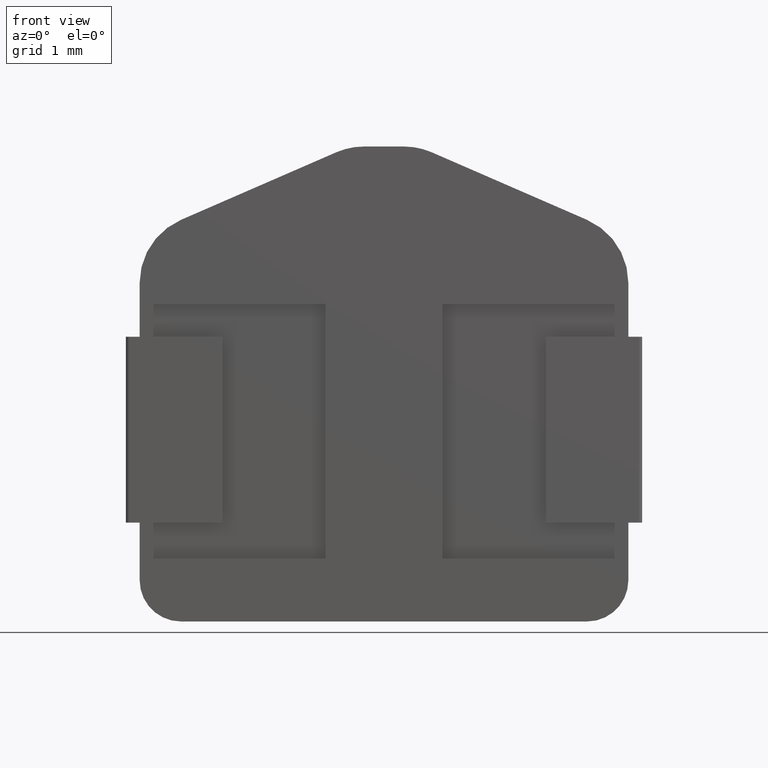
[diagram: clean part render]
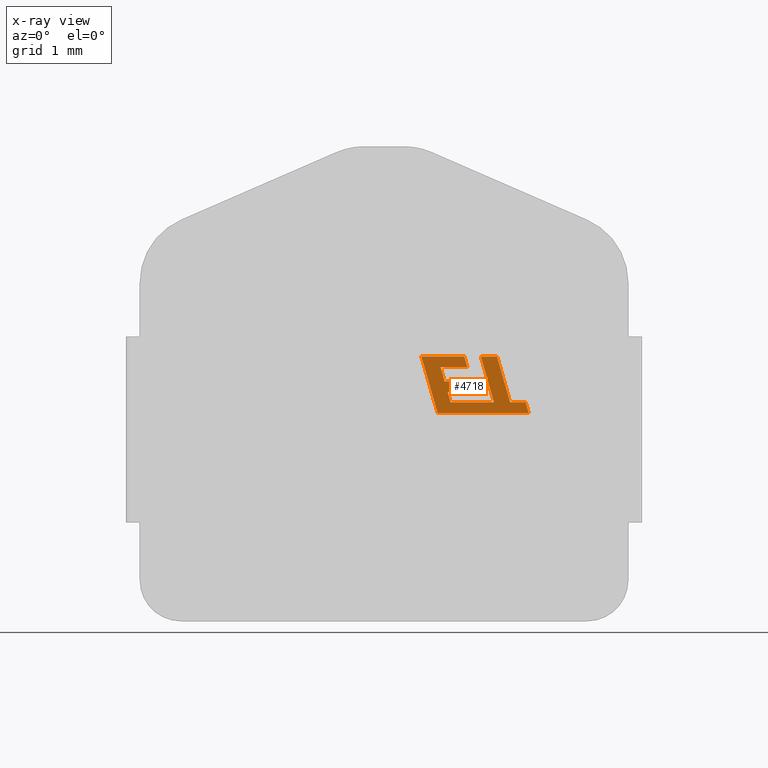
[diagram: x-ray — body ghosted, one internal face saturated and labeled with its STEP entity id]
A machine part, front view, then the same camera in x-ray: the body is ghosted and one INTERNAL B-rep face — a face not visible from any outside direction — is saturated and labeled: STEP entity #4718.
In plain terms, the highlighted planar face has unit normal (0, 1, -0).
Its self-contained STEP definition (entity closure, byte-faithful):
#24 = ORIENTED_EDGE ( 'NONE', *, *, #288, .F. ) ;
#55 = CARTESIAN_POINT ( 'NONE',  ( 3.815651111959286600, 3.000000000000000000, -2.728963836854994400 ) ) ;
#78 = DIRECTION ( 'NONE',  ( 0.2729786930695121100, -9.271319956921572800E-017, -0.9620200793798749900 ) ) ;
#177 = VERTEX_POINT ( 'NONE', #2889 ) ;
#194 = EDGE_CURVE ( 'NONE', #4383, #2984, #3075, .T. ) ;
#286 = ORIENTED_EDGE ( 'NONE', *, *, #194, .F. ) ;
#288 = EDGE_CURVE ( 'NONE', #177, #494, #4336, .T. ) ;
#295 = EDGE_CURVE ( 'NONE', #3774, #4580, #4686, .T. ) ;
#311 = VECTOR ( 'NONE', #2411, 1000.000000000000200 ) ;
#319 = CARTESIAN_POINT ( 'NONE',  ( 3.619887820975604700, 3.000000000000000000, -2.885910522433726000 ) ) ;
#344 = ORIENTED_EDGE ( 'NONE', *, *, #2774, .F. ) ;
#382 = ORIENTED_EDGE ( 'NONE', *, *, #4048, .F. ) ;
#406 = CARTESIAN_POINT ( 'NONE',  ( 3.756255034792675800, 3.000000000000000000, -3.395667498842474000 ) ) ;
#410 = VECTOR ( 'NONE', #2431, 1000.000000000000100 ) ;
#429 = CARTESIAN_POINT ( 'NONE',  ( 3.756255034792675800, 3.000000000000000000, -3.395667498842474000 ) ) ;
#430 = DIRECTION ( 'NONE',  ( 0.9999960426590095400, 2.711276046396867900E-019, 0.002813301676023186900 ) ) ;
#432 = ORIENTED_EDGE ( 'NONE', *, *, #3331, .F. ) ;
#494 = VERTEX_POINT ( 'NONE', #3499 ) ;
#526 = ORIENTED_EDGE ( 'NONE', *, *, #295, .F. ) ;
#561 = CARTESIAN_POINT ( 'NONE',  ( 3.687604966545133600, 3.000000000000000400, -3.243320222380188700 ) ) ;
#572 = ORIENTED_EDGE ( 'NONE', *, *, #4684, .F. ) ;
#576 = DIRECTION ( 'NONE',  ( -1.000000000000000000, 0.0000000000000000000, -0.0000000000000000000 ) ) ;
#593 = ORIENTED_EDGE ( 'NONE', *, *, #1124, .F. ) ;
#604 = CARTESIAN_POINT ( 'NONE',  ( 3.575353302383757400, 3.000000000000000000, -2.728963836854994400 ) ) ;
#639 = CARTESIAN_POINT ( 'NONE',  ( 4.467716054780367200, 3.000000000000000000, -3.394483418020517000 ) ) ;
#644 = LINE ( 'NONE', #3483, #3506 ) ;
#675 = DIRECTION ( 'NONE',  ( 0.2746918797667231000, -9.266619094790076700E-017, -0.9615323037684299100 ) ) ;
#691 = DIRECTION ( 'NONE',  ( -1.000000000000000000, 0.0000000000000000000, -0.0000000000000000000 ) ) ;
#697 = LINE ( 'NONE', #561, #2039 ) ;
#770 = LINE ( 'NONE', #4121, #4617 ) ;
#772 = LINE ( 'NONE', #1585, #3654 ) ;
#790 = CARTESIAN_POINT ( 'NONE',  ( 3.801727492437894100, 3.000000000000000000, -3.553752751347214500 ) ) ;
#821 = CARTESIAN_POINT ( 'NONE',  ( 3.189439304286957100, 3.000000000000000000, -3.553752751347214500 ) ) ;
#825 = VECTOR ( 'NONE', #3543, 1000.000000000000000 ) ;
#872 = CARTESIAN_POINT ( 'NONE',  ( 3.575353302383757400, 3.000000000000000000, -2.728963836854994400 ) ) ;
#966 = ORIENTED_EDGE ( 'NONE', *, *, #3266, .F. ) ;
#984 = VERTEX_POINT ( 'NONE', #3388 ) ;
#988 = EDGE_CURVE ( 'NONE', #3780, #1557, #770, .T. ) ;
#1024 = DIRECTION ( 'NONE',  ( 1.000000000000000000, 0.0000000000000000000, 0.0000000000000000000 ) ) ;
#1121 = VECTOR ( 'NONE', #691, 1000.000000000000000 ) ;
#1124 = EDGE_CURVE ( 'NONE', #2614, #1665, #1580, .T. ) ;
#1179 = CARTESIAN_POINT ( 'NONE',  ( 3.378290941649760600, 3.000000000000000000, -3.396730830067153500 ) ) ;
#1193 = ORIENTED_EDGE ( 'NONE', *, *, #4196, .F. ) ;
#1388 = DIRECTION ( 'NONE',  ( 0.0000000000000000000, 9.637345576921772200E-017, 1.000000000000000000 ) ) ;
#1401 = LINE ( 'NONE', #1936, #410 ) ;
#1415 = LINE ( 'NONE', #2471, #311 ) ;
#1430 = CARTESIAN_POINT ( 'NONE',  ( 3.231636499808257000, 3.000000000000000000, -2.885910522433726000 ) ) ;
#1458 = FACE_OUTER_BOUND ( 'NONE', #1609, .T. ) ;
#1526 = CARTESIAN_POINT ( 'NONE',  ( 2.952201079175948500, 3.000000000000000000, -2.728963836854994400 ) ) ;
#1555 = DIRECTION ( 'NONE',  ( -1.000000000000000000, 0.0000000000000000000, -0.0000000000000000000 ) ) ;
#1557 = VERTEX_POINT ( 'NONE', #1526 ) ;
#1580 = LINE ( 'NONE', #429, #2120 ) ;
#1582 = LINE ( 'NONE', #790, #3879 ) ;
#1585 = CARTESIAN_POINT ( 'NONE',  ( 4.007000575218949500, 3.000000000000000000, -3.394501345494890500 ) ) ;
#1609 = EDGE_LOOP ( 'NONE', ( #2025, #382, #572, #526, #1846, #1193, #24, #3016, #1944, #3087, #966, #3855, #344, #4264, #286, #432, #593 ) ) ;
#1665 = VERTEX_POINT ( 'NONE', #3111 ) ;
#1695 = LINE ( 'NONE', #1430, #4439 ) ;
#1706 = CARTESIAN_POINT ( 'NONE',  ( 4.467716054780367200, 3.000000000000000000, -3.394483418020517000 ) ) ;
#1731 = CARTESIAN_POINT ( 'NONE',  ( 3.290149811430506300, 3.000000000000000000, -3.090872631651098200 ) ) ;
#1846 = ORIENTED_EDGE ( 'NONE', *, *, #2509, .F. ) ;
#1879 = CARTESIAN_POINT ( 'NONE',  ( 3.644053527764386400, 3.000000000000000000, -3.090872631651098200 ) ) ;
#1936 = CARTESIAN_POINT ( 'NONE',  ( 4.241896461545553400, 3.000000000000000000, -3.394501345492823700 ) ) ;
#1944 = ORIENTED_EDGE ( 'NONE', *, *, #4135, .F. ) ;
#2025 = ORIENTED_EDGE ( 'NONE', *, *, #2281, .F. ) ;
#2039 = VECTOR ( 'NONE', #576, 1000.000000000000000 ) ;
#2072 = VERTEX_POINT ( 'NONE', #639 ) ;
#2120 = VECTOR ( 'NONE', #4562, 1000.000000000000200 ) ;
#2131 = VECTOR ( 'NONE', #1024, 1000.000000000000000 ) ;
#2254 = VERTEX_POINT ( 'NONE', #2325 ) ;
#2281 = EDGE_CURVE ( 'NONE', #2672, #2614, #644, .T. ) ;
#2325 = CARTESIAN_POINT ( 'NONE',  ( 4.241896461545553400, 3.000000000000000000, -3.394501345492823700 ) ) ;
#2343 = CARTESIAN_POINT ( 'NONE',  ( 4.513487307203996900, 3.000000000000000000, -3.553752751347214500 ) ) ;
#2411 = DIRECTION ( 'NONE',  ( 0.2793947940814895400, -9.253550928069344500E-017, -0.9601763114346041400 ) ) ;
#2426 = VERTEX_POINT ( 'NONE', #604 ) ;
#2431 = DIRECTION ( 'NONE',  ( 0.9999999968487352000, 7.650941307961965300E-021, 7.938847109813534800E-005 ) ) ;
#2471 = CARTESIAN_POINT ( 'NONE',  ( 3.333651093078017400, 3.000000000000000400, -3.243320222380188700 ) ) ;
#2509 = EDGE_CURVE ( 'NONE', #3577, #3774, #3231, .T. ) ;
#2525 = LINE ( 'NONE', #2925, #3062 ) ;
#2559 = DIRECTION ( 'NONE',  ( 0.0000000000000000000, 1.000000000000000000, -9.637345576921772200E-017 ) ) ;
#2574 = LINE ( 'NONE', #4777, #4779 ) ;
#2575 = VECTOR ( 'NONE', #2883, 1000.000000000000000 ) ;
#2614 = VERTEX_POINT ( 'NONE', #406 ) ;
#2663 = EDGE_CURVE ( 'NONE', #2426, #177, #2812, .T. ) ;
#2672 = VERTEX_POINT ( 'NONE', #1179 ) ;
#2774 = EDGE_CURVE ( 'NONE', #2254, #2072, #1401, .T. ) ;
#2812 = LINE ( 'NONE', #872, #3569 ) ;
#2883 = DIRECTION ( 'NONE',  ( 1.000000000000000000, 0.0000000000000000000, 0.0000000000000000000 ) ) ;
#2886 = CARTESIAN_POINT ( 'NONE',  ( 3.290149811430506300, 3.000000000000000000, -3.090872631651098200 ) ) ;
#2889 = CARTESIAN_POINT ( 'NONE',  ( 3.619887820975604700, 3.000000000000000000, -2.885910522433726000 ) ) ;
#2925 = CARTESIAN_POINT ( 'NONE',  ( 2.952201079175948500, 3.000000000000000000, -2.728963836854994400 ) ) ;
#2969 = DIRECTION ( 'NONE',  ( -0.2764273280489760200, 9.261824707170264900E-017, 0.9610348236706637300 ) ) ;
#2984 = VERTEX_POINT ( 'NONE', #4027 ) ;
#3016 = ORIENTED_EDGE ( 'NONE', *, *, #2663, .F. ) ;
#3062 = VECTOR ( 'NONE', #3649, 1000.000000000000000 ) ;
#3075 = LINE ( 'NONE', #3284, #2131 ) ;
#3087 = ORIENTED_EDGE ( 'NONE', *, *, #988, .F. ) ;
#3111 = CARTESIAN_POINT ( 'NONE',  ( 4.007000575218949500, 3.000000000000000000, -3.394501345494890500 ) ) ;
#3231 = LINE ( 'NONE', #1731, #2575 ) ;
#3242 = DIRECTION ( 'NONE',  ( 0.2745159998572679900, -9.267103161489322900E-017, -0.9615825319869140100 ) ) ;
#3266 = EDGE_CURVE ( 'NONE', #4358, #3780, #1582, .T. ) ;
#3284 = CARTESIAN_POINT ( 'NONE',  ( 3.815651111959286600, 3.000000000000000000, -2.728963836854994400 ) ) ;
#3331 = EDGE_CURVE ( 'NONE', #1665, #4383, #772, .T. ) ;
#3388 = CARTESIAN_POINT ( 'NONE',  ( 3.333651093078017400, 3.000000000000000400, -3.243320222380188700 ) ) ;
#3477 = CARTESIAN_POINT ( 'NONE',  ( 3.644053527764386400, 3.000000000000000000, -3.090872631651098200 ) ) ;
#3483 = CARTESIAN_POINT ( 'NONE',  ( 3.378290941649760600, 3.000000000000000000, -3.396730830067153500 ) ) ;
#3499 = CARTESIAN_POINT ( 'NONE',  ( 3.231636499808257000, 3.000000000000000000, -2.885910522433726000 ) ) ;
#3506 = VECTOR ( 'NONE', #430, 1000.000000000000100 ) ;
#3543 = DIRECTION ( 'NONE',  ( 0.2762033010288969000, -9.262445446284567800E-017, -0.9610992334305239500 ) ) ;
#3569 = VECTOR ( 'NONE', #78, 1000.000000000000200 ) ;
#3577 = VERTEX_POINT ( 'NONE', #2886 ) ;
#3595 = VECTOR ( 'NONE', #675, 1000.000000000000000 ) ;
#3607 = CARTESIAN_POINT ( 'NONE',  ( 3.687604966545133600, 3.000000000000000400, -3.243320222380188700 ) ) ;
#3649 = DIRECTION ( 'NONE',  ( 1.000000000000000000, 0.0000000000000000000, 0.0000000000000000000 ) ) ;
#3654 = VECTOR ( 'NONE', #4616, 1000.000000000000000 ) ;
#3708 = DIRECTION ( 'NONE',  ( 0.2762437428917329800, -9.262333429361840300E-017, -0.9610876102172819500 ) ) ;
#3774 = VERTEX_POINT ( 'NONE', #3477 ) ;
#3780 = VERTEX_POINT ( 'NONE', #821 ) ;
#3855 = ORIENTED_EDGE ( 'NONE', *, *, #4014, .F. ) ;
#3879 = VECTOR ( 'NONE', #1555, 1000.000000000000000 ) ;
#4014 = EDGE_CURVE ( 'NONE', #2072, #4358, #4163, .T. ) ;
#4027 = CARTESIAN_POINT ( 'NONE',  ( 4.050602171132853300, 3.000000000000000000, -2.728963836854994400 ) ) ;
#4048 = EDGE_CURVE ( 'NONE', #984, #2672, #1415, .T. ) ;
#4082 = PLANE ( 'NONE',  #4564 ) ;
#4121 = CARTESIAN_POINT ( 'NONE',  ( 3.189439304286957100, 3.000000000000000000, -3.553752751347214500 ) ) ;
#4135 = EDGE_CURVE ( 'NONE', #1557, #2426, #2525, .T. ) ;
#4163 = LINE ( 'NONE', #1706, #825 ) ;
#4196 = EDGE_CURVE ( 'NONE', #494, #3577, #1695, .T. ) ;
#4264 = ORIENTED_EDGE ( 'NONE', *, *, #4727, .F. ) ;
#4336 = LINE ( 'NONE', #319, #1121 ) ;
#4358 = VERTEX_POINT ( 'NONE', #2343 ) ;
#4383 = VERTEX_POINT ( 'NONE', #55 ) ;
#4439 = VECTOR ( 'NONE', #3242, 1000.000000000000000 ) ;
#4562 = DIRECTION ( 'NONE',  ( 0.9999891854650020400, 4.482034355129687800E-019, 0.004650693823683842500 ) ) ;
#4564 = AXIS2_PLACEMENT_3D ( 'NONE', #4750, #2559, #1388 ) ;
#4580 = VERTEX_POINT ( 'NONE', #3607 ) ;
#4616 = DIRECTION ( 'NONE',  ( -0.2763173343569809100, 9.262129548257395200E-017, 0.9610664548998952800 ) ) ;
#4617 = VECTOR ( 'NONE', #2969, 1000.000000000000000 ) ;
#4684 = EDGE_CURVE ( 'NONE', #4580, #984, #697, .T. ) ;
#4686 = LINE ( 'NONE', #1879, #3595 ) ;
#4718 = ADVANCED_FACE ( 'NONE', ( #1458 ), #4082, .F. ) ;
#4727 = EDGE_CURVE ( 'NONE', #2984, #2254, #2574, .T. ) ;
#4750 = CARTESIAN_POINT ( 'NONE',  ( -0.9735785225890778400, 3.000000000000000400, 0.6853031351350324900 ) ) ;
#4777 = CARTESIAN_POINT ( 'NONE',  ( 4.050602171132853300, 3.000000000000000000, -2.728963836854994400 ) ) ;
#4779 = VECTOR ( 'NONE', #3708, 1000.000000000000000 ) ;